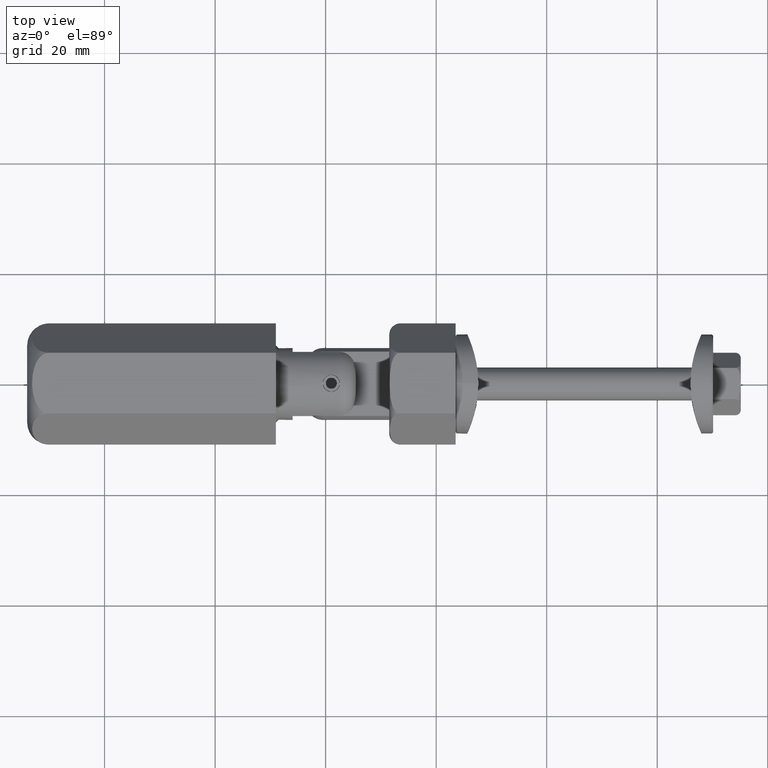
[diagram: clean part render]
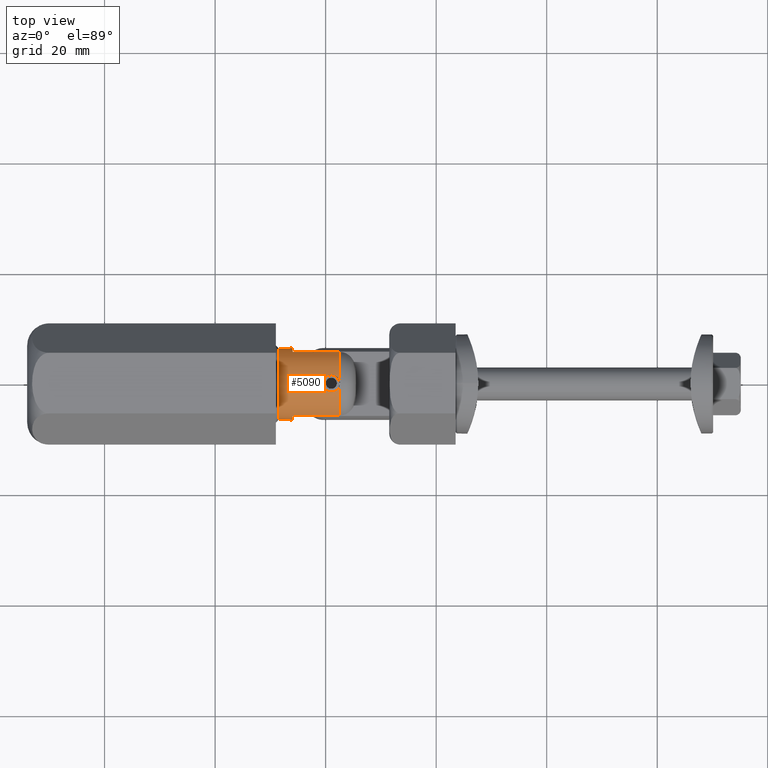
[diagram: same view with one face highlighted and labeled with its STEP entity id]
A machine part, top view. The second image highlights one B-rep face of the part: STEP entity #5090.
In plain terms, the highlighted cylindrical surface (bore or boss wall) has radius 6.5 mm, axis along (-1, -0, 0).
Its self-contained STEP definition (entity closure, byte-faithful):
#72 = FACE_OUTER_BOUND ( 'NONE', #5852, .T. ) ;
#126 = LINE ( 'NONE', #3323, #15029 ) ;
#281 = CARTESIAN_POINT ( 'NONE',  ( -6.462007981202240181, -0.7230366108323501573, 18.13646860598549893 ) ) ;
#400 = CARTESIAN_POINT ( 'NONE',  ( -6.466282350496606490, 0.7556423223817891888, 20.92494149321721508 ) ) ;
#466 = CARTESIAN_POINT ( 'NONE',  ( -6.321466032905438404, 1.513169315884355548, 19.13502462172998264 ) ) ;
#517 = CARTESIAN_POINT ( 'NONE',  ( 0.000000000000000000, 0.000000000000000000, 21.01999999999999957 ) ) ;
#522 = LINE ( 'NONE', #12873, #15217 ) ;
#606 = DIRECTION ( 'NONE',  ( -0.000000000000000000, 0.000000000000000000, 1.000000000000000000 ) ) ;
#644 = AXIS2_PLACEMENT_3D ( 'NONE', #8154, #15267, #6517 ) ;
#653 = DIRECTION ( 'NONE',  ( 1.000000000000000000, 0.000000000000000000, 0.000000000000000000 ) ) ;
#796 = ORIENTED_EDGE ( 'NONE', *, *, #1236, .T. ) ;
#837 = EDGE_CURVE ( 'NONE', #13792, #11452, #1939, .T. ) ;
#933 = VERTEX_POINT ( 'NONE', #5669 ) ;
#999 = AXIS2_PLACEMENT_3D ( 'NONE', #517, #10574, #14833 ) ;
#1169 = CARTESIAN_POINT ( 'NONE',  ( 6.351853819903388043, 1.380373480204796888, 20.23112160902312340 ) ) ;
#1220 = CARTESIAN_POINT ( 'NONE',  ( 0.000000000000000000, 0.000000000000000000, 21.01999999999999957 ) ) ;
#1231 = CARTESIAN_POINT ( 'NONE',  ( 6.396627193966058833, -1.163248542334967661, 18.47888518138299929 ) ) ;
#1236 = EDGE_CURVE ( 'NONE', #933, #6383, #7824, .T. ) ;
#1288 = CARTESIAN_POINT ( 'NONE',  ( 6.335503091959001409, 1.455794464885121542, 18.95643939972970315 ) ) ;
#1346 = CARTESIAN_POINT ( 'NONE',  ( 6.314296772243744194, 1.542622327425138273, 19.69758859640528925 ) ) ;
#1407 = CARTESIAN_POINT ( 'NONE',  ( 6.327953568741654600, 1.485766660486701030, 19.97135893335244461 ) ) ;
#1532 = CARTESIAN_POINT ( 'NONE',  ( -6.499965116357547146, -0.1875357047017042755, 17.97014628628474142 ) ) ;
#1594 = CARTESIAN_POINT ( 'NONE',  ( -6.327953568741654600, -1.485766660486701030, 19.97135893335244461 ) ) ;
#1653 = CARTESIAN_POINT ( 'NONE',  ( -6.416865392419142111, -1.047664414368840058, 20.67752767924360313 ) ) ;
#1816 = AXIS2_PLACEMENT_3D ( 'NONE', #1220, #7001, #8372 ) ;
#1844 = AXIS2_PLACEMENT_3D ( 'NONE', #8746, #8806, #10272 ) ;
#1860 = DIRECTION ( 'NONE',  ( -0.000000000000000000, 0.000000000000000000, 1.000000000000000000 ) ) ;
#1932 = DIRECTION ( 'NONE',  ( -0.000000000000000000, -0.000000000000000000, -1.000000000000000000 ) ) ;
#1939 = CIRCLE ( 'NONE', #1816, 6.500000000000000888 ) ;
#2048 = CARTESIAN_POINT ( 'NONE',  ( -6.309743809212775112, 1.561328679622643545, 19.50816046471019405 ) ) ;
#2151 = ORIENTED_EDGE ( 'NONE', *, *, #837, .T. ) ;
#2386 = CYLINDRICAL_SURFACE ( 'NONE', #8285, 6.500000000000000888 ) ;
#2441 = EDGE_CURVE ( 'NONE', #7860, #17935, #5981, .T. ) ;
#2629 = CARTESIAN_POINT ( 'NONE',  ( 6.311805243032504009, 1.552785222452127911, 19.51108890702298737 ) ) ;
#2753 = CARTESIAN_POINT ( 'NONE',  ( 6.488258626164657983, -0.3905124837953181660, 21.01999999999999957 ) ) ;
#2808 = CARTESIAN_POINT ( 'NONE',  ( 6.459315082520518558, 0.7423010536731293740, 20.89348469196625757 ) ) ;
#2842 = CARTESIAN_POINT ( 'NONE',  ( -2.999999999999998224, -5.766281297335399181, 12.51999999999999957 ) ) ;
#2871 = CARTESIAN_POINT ( 'NONE',  ( 6.396525419787441713, 1.163704438876292935, 18.47956382231625483 ) ) ;
#2944 = CARTESIAN_POINT ( 'NONE',  ( -6.311805243032504009, -1.552785222452127911, 19.51108890702298737 ) ) ;
#2999 = CARTESIAN_POINT ( 'NONE',  ( -6.440774695120522253, 0.8791268241139131856, 18.24004643859115049 ) ) ;
#3119 = CARTESIAN_POINT ( 'NONE',  ( -6.396525419787441713, -1.163704438876292935, 18.47956382231625483 ) ) ;
#3323 = CARTESIAN_POINT ( 'NONE',  ( -3.000000000000000000, 5.766281297335399181, 24.01999999999999957 ) ) ;
#3477 = CIRCLE ( 'NONE', #1844, 6.500000000000000888 ) ;
#3520 = EDGE_CURVE ( 'NONE', #9129, #13769, #3477, .T. ) ;
#3756 = CARTESIAN_POINT ( 'NONE',  ( 3.000000000000000000, 5.766281297335398293, 24.01999999999999957 ) ) ;
#4068 = ORIENTED_EDGE ( 'NONE', *, *, #13653, .T. ) ;
#4101 = CARTESIAN_POINT ( 'NONE',  ( 6.317592716312236512, 1.529222419520011700, 19.78964096085021751 ) ) ;
#4117 = ORIENTED_EDGE ( 'NONE', *, *, #8843, .T. ) ;
#4279 = CARTESIAN_POINT ( 'NONE',  ( 6.321466032905438404, -1.513169315884355548, 19.13502462172998264 ) ) ;
#4311 = AXIS2_PLACEMENT_3D ( 'NONE', #8933, #1860, #6115 ) ;
#4330 = EDGE_CURVE ( 'NONE', #15842, #7860, #522, .T. ) ;
#4342 = CARTESIAN_POINT ( 'NONE',  ( 6.414167937375686357, -1.074255829362860348, 20.69806680930026488 ) ) ;
#4398 = CARTESIAN_POINT ( 'NONE',  ( -6.459315082520518558, -0.7423010536731293740, 20.89348469196625757 ) ) ;
#4710 = CARTESIAN_POINT ( 'NONE',  ( -6.333131159795406973, 1.464059017870493751, 20.06274665522984435 ) ) ;
#4837 = CARTESIAN_POINT ( 'NONE',  ( -6.335532174377116021, 1.455712339972458746, 18.95585437619362068 ) ) ;
#5090 = ADVANCED_FACE ( 'NONE', ( #8218, #72 ), #2386, .T. ) ;
#5140 = ORIENTED_EDGE ( 'NONE', *, *, #2441, .T. ) ;
#5501 = CARTESIAN_POINT ( 'NONE',  ( 6.466282350496606490, -0.7556423223817891888, 20.92494149321721508 ) ) ;
#5669 = CARTESIAN_POINT ( 'NONE',  ( 6.488258626164657983, -0.3905124837953181660, 21.01999999999999957 ) ) ;
#5680 = CARTESIAN_POINT ( 'NONE',  ( 6.393118669102075380, 1.178729899667147585, 20.54363764882653953 ) ) ;
#5736 = CARTESIAN_POINT ( 'NONE',  ( 6.499965116357547146, 0.1875357047017042755, 17.97014628628474142 ) ) ;
#5852 = EDGE_LOOP ( 'NONE', ( #10784 ) ) ;
#5861 = CARTESIAN_POINT ( 'NONE',  ( -6.361540753421133232, -1.335530555981330636, 20.31217591932366417 ) ) ;
#5923 = B_SPLINE_CURVE_WITH_KNOTS ( 'NONE', 3,
 ( #7080, #10211, #4398, #1653, #11582, #5861, #16062, #10267, #1594, #11834, #7303, #2944, #7414, #6034, #17498, #16001, #3119, #13209, #281, #17385, #1532, #10392, #15878, #7251, #17319, #2999, #8804, #9046, #13335, #4837, #466, #2048, #16177, #4710, #17823, #17629, #400, #17888 ),
 .UNSPECIFIED., .F., .F.,
 ( 4, 2, 2, 2, 2, 2, 2, 2, 2, 2, 2, 2, 2, 2, 2, 2, 2, 2, 4 ),
 ( 0.000000000000000000, 0.0005586757991572962332, 0.001117351598314592466, 0.001396689497893244432, 0.001676027397471896614, 0.001955365297050548797, 0.002234703196629200979, 0.002793378995786505344, 0.003352054794943810142, 0.003910730594101114940, 0.004469406393258419305, 0.005028082192415724537, 0.005307420091994374117, 0.005586757991573024565, 0.006145433790730332399, 0.006704109589887640233, 0.007262785389044948067, 0.007821461188202255901, 0.008938812786516862896 ),
 .UNSPECIFIED. ) ;
#5981 = CIRCLE ( 'NONE', #644, 6.500000000000000888 ) ;
#6034 = CARTESIAN_POINT ( 'NONE',  ( -6.321318056634827265, -1.513780874653896991, 19.13812742010643220 ) ) ;
#6051 = CARTESIAN_POINT ( 'NONE',  ( 3.000000000000000000, 5.766281297335398293, 12.51999999999999957 ) ) ;
#6115 = DIRECTION ( 'NONE',  ( 1.000000000000000000, 0.000000000000000000, 0.000000000000000000 ) ) ;
#6383 = VERTEX_POINT ( 'NONE', #15252 ) ;
#6475 = DIRECTION ( 'NONE',  ( 0.000000000000000000, 0.000000000000000000, 1.000000000000000000 ) ) ;
#6517 = DIRECTION ( 'NONE',  ( 1.000000000000000000, 0.000000000000000000, 0.000000000000000000 ) ) ;
#6630 = VERTEX_POINT ( 'NONE', #7861 ) ;
#6900 = CIRCLE ( 'NONE', #4311, 6.500000000000000888 ) ;
#7001 = DIRECTION ( 'NONE',  ( -0.000000000000000000, -0.000000000000000000, -1.000000000000000000 ) ) ;
#7013 = CARTESIAN_POINT ( 'NONE',  ( 6.440840383693959836, 0.8861831745323912601, 18.23493391529103391 ) ) ;
#7044 = CIRCLE ( 'NONE', #17252, 6.499999999999995559 ) ;
#7067 = CARTESIAN_POINT ( 'NONE',  ( 3.000000000000001776, -5.766281297335398293, 12.51999999999999957 ) ) ;
#7080 = CARTESIAN_POINT ( 'NONE',  ( -6.488258626164652654, -0.3905124837953178329, 21.01999999999999957 ) ) ;
#7130 = CARTESIAN_POINT ( 'NONE',  ( 6.321318056634827265, 1.513780874653896991, 19.13812742010643220 ) ) ;
#7186 = EDGE_CURVE ( 'NONE', #6383, #18093, #11696, .T. ) ;
#7190 = CARTESIAN_POINT ( 'NONE',  ( 6.477270729483407763, 0.5730733964007983516, 20.97247178971631953 ) ) ;
#7221 = B_SPLINE_CURVE_WITH_KNOTS ( 'NONE', 3,
 ( #11462, #7190, #2808, #12902, #5680, #14292, #1169, #11295, #1407, #4101, #1346, #2629, #14175, #7130, #1288, #11408, #2871, #7013, #12724, #17199, #5736, #8555, #17075, #8437, #10084, #9901, #18691, #1231, #11523, #12967, #4279, #15817, #17258, #11350, #8622, #4342, #5501, #2753 ),
 .UNSPECIFIED., .F., .F.,
 ( 4, 2, 2, 2, 2, 2, 2, 2, 2, 2, 2, 2, 2, 2, 2, 2, 2, 2, 4 ),
 ( 0.000000000000000000, 0.0005586757991572962332, 0.001117351598314592466, 0.001396689497893244432, 0.001676027397471896614, 0.001955365297050548797, 0.002234703196629200979, 0.002793378995786505344, 0.003352054794943810142, 0.003910730594101114940, 0.004469406393258419305, 0.005028082192415724537, 0.005307420091994374117, 0.005586757991573024565, 0.006145433790730332399, 0.006704109589887640233, 0.007262785389044948067, 0.007821461188202255901, 0.008938812786516862896 ),
 .UNSPECIFIED. ) ;
#7251 = CARTESIAN_POINT ( 'NONE',  ( -6.469539946314173839, 0.6345801445865428825, 18.10279354623190073 ) ) ;
#7303 = CARTESIAN_POINT ( 'NONE',  ( -6.314296772243744194, -1.542622327425138273, 19.69758859640528925 ) ) ;
#7310 = ORIENTED_EDGE ( 'NONE', *, *, #3520, .T. ) ;
#7414 = CARTESIAN_POINT ( 'NONE',  ( -6.312667094193932904, -1.549316876975946000, 19.41592303015018572 ) ) ;
#7440 = VERTEX_POINT ( 'NONE', #11419 ) ;
#7468 = ORIENTED_EDGE ( 'NONE', *, *, #13447, .F. ) ;
#7824 = CIRCLE ( 'NONE', #999, 6.500000000000000888 ) ;
#7860 = VERTEX_POINT ( 'NONE', #12605 ) ;
#7861 = CARTESIAN_POINT ( 'NONE',  ( -3.000000000000000000, 5.766281297335399181, 12.51999999999999957 ) ) ;
#8125 = CARTESIAN_POINT ( 'NONE',  ( -3.000000000000000000, 5.766281297335399181, 21.01999999999999957 ) ) ;
#8154 = CARTESIAN_POINT ( 'NONE',  ( 0.000000000000000000, 0.000000000000000000, 21.01999999999999957 ) ) ;
#8218 = FACE_OUTER_BOUND ( 'NONE', #15838, .T. ) ;
#8285 = AXIS2_PLACEMENT_3D ( 'NONE', #13110, #16019, #14676 ) ;
#8372 = DIRECTION ( 'NONE',  ( 1.000000000000000000, 0.000000000000000000, 0.000000000000000000 ) ) ;
#8437 = CARTESIAN_POINT ( 'NONE',  ( 6.469539946314173839, -0.6345801445865428825, 18.10279354623190073 ) ) ;
#8555 = CARTESIAN_POINT ( 'NONE',  ( 6.500034657280904682, -0.1851097203013242209, 17.96985466297352829 ) ) ;
#8622 = CARTESIAN_POINT ( 'NONE',  ( 6.350933433050623300, -1.388178125423548126, 20.23435512220421018 ) ) ;
#8746 = CARTESIAN_POINT ( 'NONE',  ( 0.000000000000000000, 0.000000000000000000, 21.01999999999999957 ) ) ;
#8804 = CARTESIAN_POINT ( 'NONE',  ( -6.430023184425155414, 0.9538335836049314231, 18.29470684977649952 ) ) ;
#8806 = DIRECTION ( 'NONE',  ( -0.000000000000000000, -0.000000000000000000, -1.000000000000000000 ) ) ;
#8843 = EDGE_CURVE ( 'NONE', #15968, #13792, #15961, .T. ) ;
#8883 = CIRCLE ( 'NONE', #17838, 6.500000000000000888 ) ;
#8933 = CARTESIAN_POINT ( 'NONE',  ( 0.000000000000000000, 0.000000000000000000, 12.51999999999999957 ) ) ;
#8962 = ORIENTED_EDGE ( 'NONE', *, *, #10943, .T. ) ;
#9046 = CARTESIAN_POINT ( 'NONE',  ( -6.396627193966058833, 1.163248542334967661, 18.47888518138299929 ) ) ;
#9129 = VERTEX_POINT ( 'NONE', #16340 ) ;
#9297 = CARTESIAN_POINT ( 'NONE',  ( 0.000000000000000000, 0.000000000000000000, 10.00000000000000000 ) ) ;
#9901 = CARTESIAN_POINT ( 'NONE',  ( 6.440774695120522253, -0.8791268241139131856, 18.24004643859115049 ) ) ;
#9998 = ORIENTED_EDGE ( 'NONE', *, *, #4330, .T. ) ;
#10084 = CARTESIAN_POINT ( 'NONE',  ( 6.460519418021256399, -0.7198135144270141339, 18.14413169355200850 ) ) ;
#10211 = CARTESIAN_POINT ( 'NONE',  ( -6.477270729483407763, -0.5730733964007983516, 20.97247178971631953 ) ) ;
#10267 = CARTESIAN_POINT ( 'NONE',  ( -6.335081961264555694, -1.455408684299491773, 20.06121201884101168 ) ) ;
#10272 = DIRECTION ( 'NONE',  ( 1.000000000000000000, 0.000000000000000000, 0.000000000000000000 ) ) ;
#10392 = CARTESIAN_POINT ( 'NONE',  ( -6.500034657280904682, 0.1851097203013242209, 17.96985466297352829 ) ) ;
#10574 = DIRECTION ( 'NONE',  ( -0.000000000000000000, -0.000000000000000000, -1.000000000000000000 ) ) ;
#10663 = CARTESIAN_POINT ( 'NONE',  ( 0.000000000000000000, 0.000000000000000000, 12.51999999999999957 ) ) ;
#10691 = CARTESIAN_POINT ( 'NONE',  ( 3.000000000000001776, -5.766281297335398293, 24.01999999999999957 ) ) ;
#10716 = EDGE_CURVE ( 'NONE', #13769, #6630, #126, .T. ) ;
#10784 = ORIENTED_EDGE ( 'NONE', *, *, #18165, .T. ) ;
#10815 = VECTOR ( 'NONE', #15020, 1000.000000000000000 ) ;
#10943 = EDGE_CURVE ( 'NONE', #11452, #933, #7221, .T. ) ;
#11295 = CARTESIAN_POINT ( 'NONE',  ( 6.335081961264555694, 1.455408684299491773, 20.06121201884101168 ) ) ;
#11350 = CARTESIAN_POINT ( 'NONE',  ( 6.333131159795406973, -1.464059017870493751, 20.06274665522984435 ) ) ;
#11408 = CARTESIAN_POINT ( 'NONE',  ( 6.373022203367850302, 1.281610294743539713, 18.62870143802733125 ) ) ;
#11419 = CARTESIAN_POINT ( 'NONE',  ( 6.499999999999995559, 0.000000000000000000, 10.00000000000000000 ) ) ;
#11452 = VERTEX_POINT ( 'NONE', #17535 ) ;
#11462 = CARTESIAN_POINT ( 'NONE',  ( 6.488258626164652654, 0.3905124837953178329, 21.01999999999999957 ) ) ;
#11523 = CARTESIAN_POINT ( 'NONE',  ( 6.373334014479128840, -1.280109327049482992, 18.62631168050102559 ) ) ;
#11582 = CARTESIAN_POINT ( 'NONE',  ( -6.393118669102075380, -1.178729899667147585, 20.54363764882653953 ) ) ;
#11696 = LINE ( 'NONE', #10691, #10815 ) ;
#11699 = ORIENTED_EDGE ( 'NONE', *, *, #10716, .T. ) ;
#11834 = CARTESIAN_POINT ( 'NONE',  ( -6.317592716312236512, -1.529222419520011700, 19.78964096085021751 ) ) ;
#11860 = EDGE_CURVE ( 'NONE', #15968, #6630, #6900, .T. ) ;
#12130 = VECTOR ( 'NONE', #13828, 1000.000000000000000 ) ;
#12605 = CARTESIAN_POINT ( 'NONE',  ( -2.999999999999998224, -5.766281297335399181, 21.01999999999999957 ) ) ;
#12724 = CARTESIAN_POINT ( 'NONE',  ( 6.462007981202240181, 0.7230366108323501573, 18.13646860598549893 ) ) ;
#12873 = CARTESIAN_POINT ( 'NONE',  ( -2.999999999999998224, -5.766281297335399181, 24.01999999999999957 ) ) ;
#12902 = CARTESIAN_POINT ( 'NONE',  ( 6.416865392419142111, 1.047664414368840058, 20.67752767924360313 ) ) ;
#12967 = CARTESIAN_POINT ( 'NONE',  ( 6.335532174377116021, -1.455712339972458746, 18.95585437619362068 ) ) ;
#13110 = CARTESIAN_POINT ( 'NONE',  ( 0.000000000000000000, 0.000000000000000000, 24.01999999999999957 ) ) ;
#13209 = CARTESIAN_POINT ( 'NONE',  ( -6.440840383693959836, -0.8861831745323912601, 18.23493391529103391 ) ) ;
#13335 = CARTESIAN_POINT ( 'NONE',  ( -6.373334014479128840, 1.280109327049482992, 18.62631168050102559 ) ) ;
#13447 = EDGE_CURVE ( 'NONE', #15842, #18093, #8883, .T. ) ;
#13653 = EDGE_CURVE ( 'NONE', #17935, #9129, #5923, .T. ) ;
#13665 = CARTESIAN_POINT ( 'NONE',  ( -6.488258626164652654, -0.3905124837953178329, 21.01999999999999957 ) ) ;
#13769 = VERTEX_POINT ( 'NONE', #8125 ) ;
#13792 = VERTEX_POINT ( 'NONE', #15492 ) ;
#13828 = DIRECTION ( 'NONE',  ( 0.000000000000000000, 0.000000000000000000, 1.000000000000000000 ) ) ;
#14175 = CARTESIAN_POINT ( 'NONE',  ( 6.312667094193932904, 1.549316876975946000, 19.41592303015018572 ) ) ;
#14292 = CARTESIAN_POINT ( 'NONE',  ( 6.361540753421133232, 1.335530555981330636, 20.31217591932366417 ) ) ;
#14676 = DIRECTION ( 'NONE',  ( -1.000000000000000000, 0.000000000000000000, 0.000000000000000000 ) ) ;
#14833 = DIRECTION ( 'NONE',  ( 1.000000000000000000, 0.000000000000000000, 0.000000000000000000 ) ) ;
#15020 = DIRECTION ( 'NONE',  ( -0.000000000000000000, -0.000000000000000000, -1.000000000000000000 ) ) ;
#15029 = VECTOR ( 'NONE', #1932, 1000.000000000000000 ) ;
#15217 = VECTOR ( 'NONE', #15900, 1000.000000000000000 ) ;
#15252 = CARTESIAN_POINT ( 'NONE',  ( 3.000000000000001776, -5.766281297335443590, 21.02000000000007063 ) ) ;
#15267 = DIRECTION ( 'NONE',  ( -0.000000000000000000, -0.000000000000000000, -1.000000000000000000 ) ) ;
#15492 = CARTESIAN_POINT ( 'NONE',  ( 3.000000000000000000, 5.766281297335398293, 21.01999999999999957 ) ) ;
#15572 = ORIENTED_EDGE ( 'NONE', *, *, #11860, .F. ) ;
#15817 = CARTESIAN_POINT ( 'NONE',  ( 6.309743809212775112, -1.561328679622643545, 19.50816046471019405 ) ) ;
#15838 = EDGE_LOOP ( 'NONE', ( #15572, #4117, #2151, #8962, #796, #16898, #7468, #9998, #5140, #4068, #7310, #11699 ) ) ;
#15842 = VERTEX_POINT ( 'NONE', #2842 ) ;
#15878 = CARTESIAN_POINT ( 'NONE',  ( -6.491625265151414581, 0.3733064750054080339, 18.00414821115630915 ) ) ;
#15900 = DIRECTION ( 'NONE',  ( 0.000000000000000000, 0.000000000000000000, 1.000000000000000000 ) ) ;
#15961 = LINE ( 'NONE', #3756, #12130 ) ;
#15968 = VERTEX_POINT ( 'NONE', #6051 ) ;
#16001 = CARTESIAN_POINT ( 'NONE',  ( -6.373022203367850302, -1.281610294743539713, 18.62870143802733125 ) ) ;
#16019 = DIRECTION ( 'NONE',  ( -0.000000000000000000, -0.000000000000000000, -1.000000000000000000 ) ) ;
#16062 = CARTESIAN_POINT ( 'NONE',  ( -6.351853819903388043, -1.380373480204796888, 20.23112160902312340 ) ) ;
#16177 = CARTESIAN_POINT ( 'NONE',  ( -6.312284836852280812, 1.551476468859331881, 19.69596450251928488 ) ) ;
#16340 = CARTESIAN_POINT ( 'NONE',  ( -6.488258626164657983, 0.3905124837953181660, 21.01999999999999957 ) ) ;
#16898 = ORIENTED_EDGE ( 'NONE', *, *, #7186, .T. ) ;
#17075 = CARTESIAN_POINT ( 'NONE',  ( 6.491625265151414581, -0.3733064750054080339, 18.00414821115630915 ) ) ;
#17199 = CARTESIAN_POINT ( 'NONE',  ( 6.491453553778563368, 0.3759785218081659330, 18.00488244351582168 ) ) ;
#17252 = AXIS2_PLACEMENT_3D ( 'NONE', #9297, #6475, #653 ) ;
#17258 = CARTESIAN_POINT ( 'NONE',  ( 6.312284836852280812, -1.551476468859331881, 19.69596450251928488 ) ) ;
#17319 = CARTESIAN_POINT ( 'NONE',  ( -6.460519418021256399, 0.7198135144270141339, 18.14413169355200850 ) ) ;
#17385 = CARTESIAN_POINT ( 'NONE',  ( -6.491453553778563368, -0.3759785218081659330, 18.00488244351582168 ) ) ;
#17498 = CARTESIAN_POINT ( 'NONE',  ( -6.335503091959001409, -1.455794464885121542, 18.95643939972970315 ) ) ;
#17535 = CARTESIAN_POINT ( 'NONE',  ( 6.488258626164652654, 0.3905124837953178329, 21.01999999999999957 ) ) ;
#17629 = CARTESIAN_POINT ( 'NONE',  ( -6.414167937375686357, 1.074255829362860348, 20.69806680930026488 ) ) ;
#17766 = DIRECTION ( 'NONE',  ( 1.000000000000000000, 0.000000000000000000, 0.000000000000000000 ) ) ;
#17823 = CARTESIAN_POINT ( 'NONE',  ( -6.350933433050623300, 1.388178125423548126, 20.23435512220421018 ) ) ;
#17838 = AXIS2_PLACEMENT_3D ( 'NONE', #10663, #606, #17766 ) ;
#17888 = CARTESIAN_POINT ( 'NONE',  ( -6.488258626164657983, 0.3905124837953181660, 21.01999999999999957 ) ) ;
#17935 = VERTEX_POINT ( 'NONE', #13665 ) ;
#18093 = VERTEX_POINT ( 'NONE', #7067 ) ;
#18165 = EDGE_CURVE ( 'NONE', #7440, #7440, #7044, .T. ) ;
#18691 = CARTESIAN_POINT ( 'NONE',  ( 6.430023184425155414, -0.9538335836049314231, 18.29470684977649952 ) ) ;